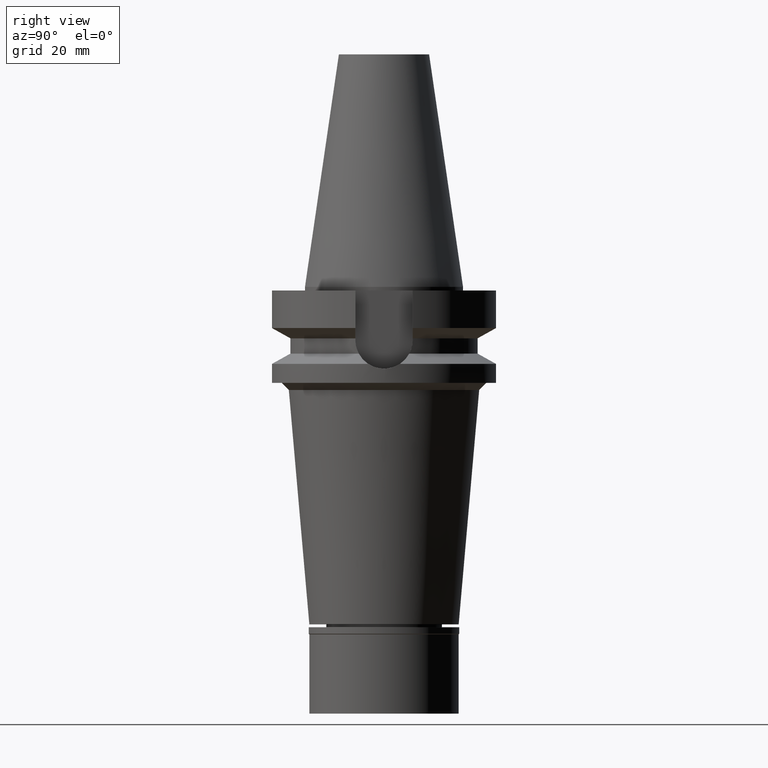
[diagram: clean part render]
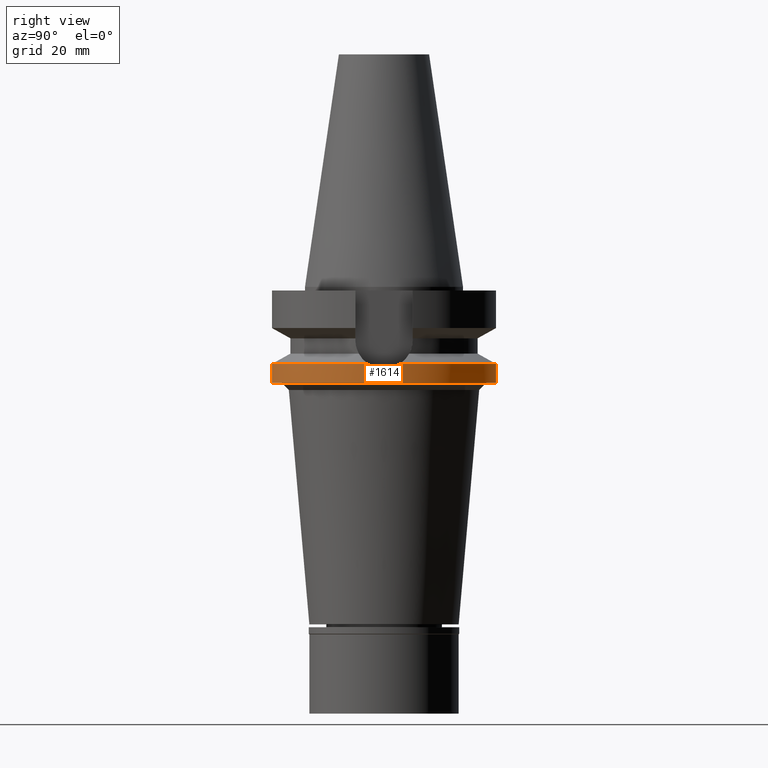
[diagram: same view with one face highlighted and labeled with its STEP entity id]
A machine part, right view. The second image highlights one B-rep face of the part: STEP entity #1614.
In plain terms, the highlighted cylindrical surface (partial cylindrical patch) has radius 31.5 mm, axis along (0, 0, -1).
Its self-contained STEP definition (entity closure, byte-faithful):
#17 = CIRCLE ( 'NONE', #2186, 31.50000000000000000 ) ;
#24 = CYLINDRICAL_SURFACE ( 'NONE', #1841, 31.50000000000000000 ) ;
#26 = VECTOR ( 'NONE', #189, 1000.000000000000000 ) ;
#29 = CARTESIAN_POINT ( 'NONE',  ( 31.46211241186345475, 1.552211430826300198, -22.85146869852631468 ) ) ;
#71 = VERTEX_POINT ( 'NONE', #2035 ) ;
#102 = EDGE_CURVE ( 'NONE', #2437, #307, #2563, .T. ) ;
#140 = B_SPLINE_CURVE_WITH_KNOTS ( 'NONE', 3,
 ( #2652, #1196, #1211, #2196, #29, #1227, #505, #1692, #1183, #2179, #2166, #1102, #1457, #2898, #745 ),
 .UNSPECIFIED., .F., .F.,
 ( 4, 2, 2, 1, 1, 1, 2, 2, 4 ),
 ( 0.0000000000000000000, 0.2500000000000033862, 0.3750000000000053291, 0.4375000000000063283, 0.4687500000000067724, 0.4843750000000068834, 0.4921875000000067724, 0.5000000000000066613, 1.000000000000000000 ),
 .UNSPECIFIED. ) ;
#189 = DIRECTION ( 'NONE',  ( 0.0000000000000000000, 1.099151708819000049E-13, -1.000000000000000000 ) ) ;
#204 = CARTESIAN_POINT ( 'NONE',  ( 31.50000030226999570, 4.154333897640999547E-14, -23.00000138148999795 ) ) ;
#232 = DIRECTION ( 'NONE',  ( 0.0000000000000000000, -1.000000000000000000, 0.0000000000000000000 ) ) ;
#273 = CARTESIAN_POINT ( 'NONE',  ( 31.41250465254786306, -2.344685119749497115, -22.65098129005715677 ) ) ;
#307 = VERTEX_POINT ( 'NONE', #2645 ) ;
#332 = DIRECTION ( 'NONE',  ( 0.0000000000000000000, 0.0000000000000000000, 1.000000000000000000 ) ) ;
#375 = CARTESIAN_POINT ( 'NONE',  ( 31.17899877608999759, -4.485536235554000051, -21.63449434733000132 ) ) ;
#398 = DIRECTION ( 'NONE',  ( 0.0000000000000000000, -1.105773104655000034E-13, -1.000000000000000000 ) ) ;
#412 = ORIENTED_EDGE ( 'NONE', *, *, #102, .T. ) ;
#433 = CIRCLE ( 'NONE', #1904, 31.50000000000001421 ) ;
#453 = CARTESIAN_POINT ( 'NONE',  ( 31.50000030226999570, 4.154333897640999547E-14, -23.00000138148999795 ) ) ;
#463 = VERTEX_POINT ( 'NONE', #2447 ) ;
#505 = CARTESIAN_POINT ( 'NONE',  ( 31.43707934141625771, 1.991785373842298590, -22.75083979994734662 ) ) ;
#568 = ORIENTED_EDGE ( 'NONE', *, *, #2945, .F. ) ;
#702 = CARTESIAN_POINT ( 'NONE',  ( 31.47113575803177454, -1.554964652454296603, -22.89006402783442340 ) ) ;
#727 = CARTESIAN_POINT ( 'NONE',  ( 31.37855930981699260, -2.761990093980114302, -22.51192666818192123 ) ) ;
#738 = VERTEX_POINT ( 'NONE', #204 ) ;
#742 = B_SPLINE_CURVE_WITH_KNOTS ( 'NONE', 3,
 ( #2173, #1936, #1466, #972, #944, #727, #1687, #1949, #2924, #2425, #2456, #273, #702, #1656, #453 ),
 .UNSPECIFIED., .F., .F.,
 ( 4, 2, 2, 1, 1, 1, 2, 2, 4 ),
 ( 0.0000000000000000000, 0.2500000000000081601, 0.3750000000000123790, 0.4375000000000140998, 0.4687500000000155431, 0.4843750000000162648, 0.4921875000000165978, 0.5000000000000169864, 1.000000000000000000 ),
 .UNSPECIFIED. ) ;
#745 = CARTESIAN_POINT ( 'NONE',  ( 31.17899877608999759, 4.485536235554000051, -21.63449434733000132 ) ) ;
#903 = DIRECTION ( 'NONE',  ( 0.0000000000000000000, 1.000000000000000000, 0.0000000000000000000 ) ) ;
#944 = CARTESIAN_POINT ( 'NONE',  ( 31.35450367990894804, -3.025551445118892069, -22.41216023077499386 ) ) ;
#972 = CARTESIAN_POINT ( 'NONE',  ( 31.33671814104520337, -3.204274408372989491, -22.33747821283994739 ) ) ;
#973 = VECTOR ( 'NONE', #398, 1000.000000000000000 ) ;
#979 = EDGE_CURVE ( 'NONE', #738, #2168, #140, .T. ) ;
#1070 = AXIS2_PLACEMENT_3D ( 'NONE', #1303, #1866, #903 ) ;
#1102 = CARTESIAN_POINT ( 'NONE',  ( 31.41418307692390854, 2.322078179467545134, -22.65782554032799823 ) ) ;
#1155 = CARTESIAN_POINT ( 'NONE',  ( 0.0000000000000000000, -31.50000000000000000, -21.63449434733000132 ) ) ;
#1183 = CARTESIAN_POINT ( 'NONE',  ( 31.41961539193200537, 2.247536052722923117, -22.67995511559754007 ) ) ;
#1193 = FACE_OUTER_BOUND ( 'NONE', #1698, .T. ) ;
#1196 = CARTESIAN_POINT ( 'NONE',  ( 31.50000030227000636, 0.3826090918708603961, -23.00000000000001066 ) ) ;
#1211 = CARTESIAN_POINT ( 'NONE',  ( 31.49278356124018430, 0.7711873036869467679, -22.97267690001556062 ) ) ;
#1227 = CARTESIAN_POINT ( 'NONE',  ( 31.44587474454636222, 1.845305156534892133, -22.78628520787819411 ) ) ;
#1275 = DIRECTION ( 'NONE',  ( 0.9898094849552905306, -0.1423979757318985240, 0.0000000000000000000 ) ) ;
#1303 = CARTESIAN_POINT ( 'NONE',  ( 0.0000000000000000000, 0.0000000000000000000, -21.63449434733000132 ) ) ;
#1376 = CARTESIAN_POINT ( 'NONE',  ( 0.0000000000000000000, 31.50000000000000000, -21.63449434733000132 ) ) ;
#1426 = VERTEX_POINT ( 'NONE', #375 ) ;
#1428 = CARTESIAN_POINT ( 'NONE',  ( 0.0000000000000000000, 2.134498138573999781E-14, 74.29500000000000171 ) ) ;
#1457 = CARTESIAN_POINT ( 'NONE',  ( 31.36324472116263351, 3.008186403653935859, -22.45010119735630028 ) ) ;
#1466 = CARTESIAN_POINT ( 'NONE',  ( 31.27811616767887415, -3.746663410852657083, -22.08609477257233422 ) ) ;
#1614 = ADVANCED_FACE ( 'NONE', ( #1193 ), #24, .T. ) ;
#1621 = LINE ( 'NONE', #1376, #26 ) ;
#1631 = EDGE_CURVE ( 'NONE', #1426, #738, #742, .T. ) ;
#1656 = CARTESIAN_POINT ( 'NONE',  ( 31.50000030227000636, -0.7652255582057007066, -23.00000000000000711 ) ) ;
#1687 = CARTESIAN_POINT ( 'NONE',  ( 31.38993145517414973, -2.631335983511131626, -22.55874663176749806 ) ) ;
#1692 = CARTESIAN_POINT ( 'NONE',  ( 31.42563404118929427, 2.162357063313896433, -22.70443063266826300 ) ) ;
#1698 = EDGE_LOOP ( 'NONE', ( #2846, #412, #3120, #568, #2070, #2816, #1957 ) ) ;
#1726 = DIRECTION ( 'NONE',  ( 0.0000000000000000000, -1.000000000000000000, 0.0000000000000000000 ) ) ;
#1841 = AXIS2_PLACEMENT_3D ( 'NONE', #1428, #2393, #232 ) ;
#1866 = DIRECTION ( 'NONE',  ( 0.0000000000000000000, 0.0000000000000000000, -1.000000000000000000 ) ) ;
#1904 = AXIS2_PLACEMENT_3D ( 'NONE', #2743, #2506, #1275 ) ;
#1936 = CARTESIAN_POINT ( 'NONE',  ( 31.23205437640118376, -4.116746327245401460, -21.88196564599424221 ) ) ;
#1949 = CARTESIAN_POINT ( 'NONE',  ( 31.40205153629625201, -2.481143929440291718, -22.60832449602379413 ) ) ;
#1957 = ORIENTED_EDGE ( 'NONE', *, *, #1631, .F. ) ;
#2035 = CARTESIAN_POINT ( 'NONE',  ( 0.0000000000000000000, 31.50000000000000000, -21.63449434733000132 ) ) ;
#2070 = ORIENTED_EDGE ( 'NONE', *, *, #2871, .T. ) ;
#2108 = EDGE_CURVE ( 'NONE', #307, #463, #17, .T. ) ;
#2166 = CARTESIAN_POINT ( 'NONE',  ( 31.41519654757096802, 2.308329250108919428, -22.66195675239163165 ) ) ;
#2168 = VERTEX_POINT ( 'NONE', #2494 ) ;
#2173 = CARTESIAN_POINT ( 'NONE',  ( 31.17899877608999759, -4.485536235554000051, -21.63449434733000132 ) ) ;
#2179 = CARTESIAN_POINT ( 'NONE',  ( 31.41697254243377913, 2.284015593811881573, -22.66919255135480782 ) ) ;
#2186 = AXIS2_PLACEMENT_3D ( 'NONE', #2205, #332, #1726 ) ;
#2196 = CARTESIAN_POINT ( 'NONE',  ( 31.47113333815073588, 1.356640495972769145, -22.88731189947450062 ) ) ;
#2205 = CARTESIAN_POINT ( 'NONE',  ( 0.0000000000000000000, 2.134498138573999781E-14, -27.00000000000000000 ) ) ;
#2393 = DIRECTION ( 'NONE',  ( 0.0000000000000000000, 0.0000000000000000000, -1.000000000000000000 ) ) ;
#2425 = CARTESIAN_POINT ( 'NONE',  ( 31.41023747457498416, -2.374835805159295266, -22.64173436496895775 ) ) ;
#2437 = VERTEX_POINT ( 'NONE', #1155 ) ;
#2447 = CARTESIAN_POINT ( 'NONE',  ( 0.0000000000000000000, 31.50000000000000000, -27.00000000000000000 ) ) ;
#2456 = CARTESIAN_POINT ( 'NONE',  ( 31.41183231690259348, -2.353663757180555649, -22.64823938058863462 ) ) ;
#2494 = CARTESIAN_POINT ( 'NONE',  ( 31.17899877608999759, 4.485536235554000051, -21.63449434733000132 ) ) ;
#2506 = DIRECTION ( 'NONE',  ( 0.0000000000000000000, 0.0000000000000000000, -1.000000000000000000 ) ) ;
#2563 = LINE ( 'NONE', #2807, #973 ) ;
#2645 = CARTESIAN_POINT ( 'NONE',  ( 0.0000000000000000000, -31.50000000000000000, -27.00000000000000000 ) ) ;
#2652 = CARTESIAN_POINT ( 'NONE',  ( 31.50000030226999570, 4.154333897640999547E-14, -23.00000138148999795 ) ) ;
#2666 = CIRCLE ( 'NONE', #1070, 31.50000000000000000 ) ;
#2743 = CARTESIAN_POINT ( 'NONE',  ( 0.0000000000000000000, 0.0000000000000000000, -21.63449434733000132 ) ) ;
#2807 = CARTESIAN_POINT ( 'NONE',  ( 0.0000000000000000000, -31.50000000000000000, -21.63449434733000132 ) ) ;
#2816 = ORIENTED_EDGE ( 'NONE', *, *, #979, .F. ) ;
#2846 = ORIENTED_EDGE ( 'NONE', *, *, #3059, .T. ) ;
#2871 = EDGE_CURVE ( 'NONE', #71, #2168, #2666, .T. ) ;
#2898 = CARTESIAN_POINT ( 'NONE',  ( 31.28511117655523321, 3.747948078760452439, -22.12944254121353183 ) ) ;
#2924 = CARTESIAN_POINT ( 'NONE',  ( 31.40782472140866233, -2.406637570913571000, -22.63189169564481418 ) ) ;
#2945 = EDGE_CURVE ( 'NONE', #71, #463, #1621, .T. ) ;
#3059 = EDGE_CURVE ( 'NONE', #1426, #2437, #433, .T. ) ;
#3120 = ORIENTED_EDGE ( 'NONE', *, *, #2108, .T. ) ;